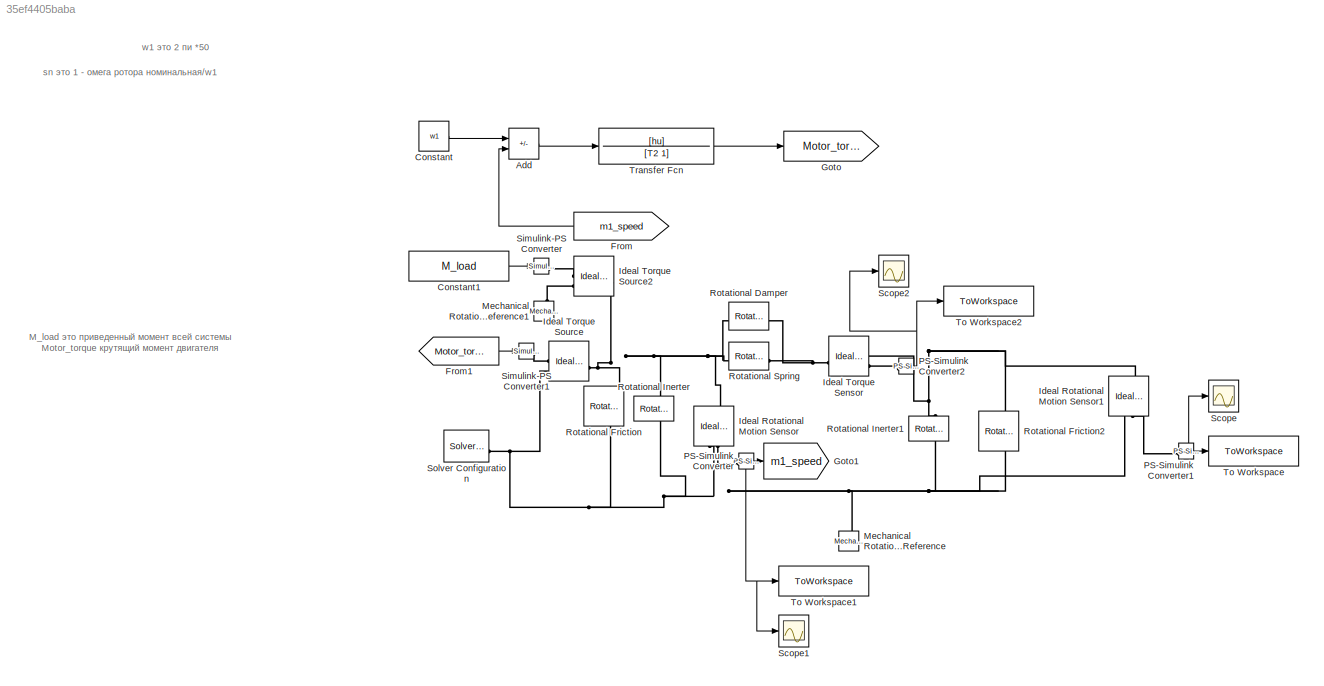
MODEL slx_35ef4405baba
KIND model
CONFIG AbsTol = auto
CONFIG EnableMultiTasking = off
CONFIG FixedStep = 0.01
CONFIG MaxStep = 0.001
CONFIG MinStep = auto
CONFIG RelTol = 1e-3
CONFIG SampleTimeConstraint = Unconstrained
CONFIG SolverName = ode23t
CONFIG StartTime = 0.0
CONFIG StopTime = 3
BLOCK [Sum] Add
  IconShape = rectangular
  Inputs = +-
BLOCK [Constant] Constant
  Value = w1
BLOCK [Constant] Constant1
  Value = M_load
BLOCK [From] From
  GotoTag = m1_speed
  NameLocation = top
BLOCK [From] From1
  GotoTag = Motor_torque
BLOCK [Goto] Goto
  GotoTag = Motor_torque
BLOCK [Goto] Goto1
  GotoTag = m1_speed
BLOCK [Reference] Ideal Rotational Motion Sensor  REF=fl_lib/Mechanical/Mechanical Sensors/Ideal Rotational
Motion Sensor
  NameLocation = left
  SourceBlock = fl_lib/Mechanical/Mechanical Sensors/Ideal Rotational\nMotion Sensor
  SourceType = Ideal Rotational\nMotion Sensor
BLOCK [Reference] Ideal Rotational Motion Sensor1  REF=fl_lib/Mechanical/Mechanical Sensors/Ideal Rotational
Motion Sensor
  NameLocation = left
  SourceBlock = fl_lib/Mechanical/Mechanical Sensors/Ideal Rotational\nMotion Sensor
  SourceType = Ideal Rotational\nMotion Sensor
BLOCK [Reference] Ideal Torque Sensor  REF=fl_lib/Mechanical/Mechanical Sensors/Ideal Torque Sensor
  SourceBlock = fl_lib/Mechanical/Mechanical Sensors/Ideal Torque Sensor
  SourceType = Ideal Torque Sensor
BLOCK [Reference] Ideal Torque Source  REF=fl_lib/Mechanical/Mechanical Sources/Ideal Torque Source
  SourceBlock = fl_lib/Mechanical/Mechanical Sources/Ideal Torque Source
  SourceType = Ideal Torque Source
BLOCK [Reference] Ideal Torque Source2  REF=fl_lib/Mechanical/Mechanical Sources/Ideal Torque Source
  SourceBlock = fl_lib/Mechanical/Mechanical Sources/Ideal Torque Source
  SourceType = Ideal Torque Source
BLOCK [Reference] Mechanical Rotational Reference  REF=fl_lib/Mechanical/Rotational Elements/Mechanical
Rotational Reference
  NameLocation = right
  SourceBlock = fl_lib/Mechanical/Rotational Elements/Mechanical\nRotational Reference
  SourceType = Mechanical\nRotational Reference
BLOCK [Reference] Mechanical Rotational Reference1  REF=fl_lib/Mechanical/Rotational Elements/Mechanical
Rotational Reference
  NameLocation = right
  SourceBlock = fl_lib/Mechanical/Rotational Elements/Mechanical\nRotational Reference
  SourceType = Mechanical\nRotational Reference
BLOCK [Reference] PS-Simulink Converter  REF=nesl_utility/PS-Simulink
Converter
  SourceBlock = nesl_utility/PS-Simulink\nConverter
  SourceType = PS-Simulink\nConverter
BLOCK [Reference] PS-Simulink Converter1  REF=nesl_utility/PS-Simulink
Converter
  SourceBlock = nesl_utility/PS-Simulink\nConverter
  SourceType = PS-Simulink\nConverter
BLOCK [Reference] PS-Simulink Converter2  REF=nesl_utility/PS-Simulink
Converter
  SourceBlock = nesl_utility/PS-Simulink\nConverter
  SourceType = PS-Simulink\nConverter
BLOCK [Reference] Rotational Damper  REF=fl_lib/Mechanical/Rotational Elements/Rotational Damper
  SourceBlock = fl_lib/Mechanical/Rotational Elements/Rotational Damper
  SourceType = Rotational Damper
BLOCK [Reference] Rotational Friction  REF=fl_lib/Mechanical/Rotational Elements/Rotational Friction
  NameLocation = left
  SourceBlock = fl_lib/Mechanical/Rotational Elements/Rotational Friction
  SourceType = Rotational Friction
BLOCK [Reference] Rotational Friction2  REF=fl_lib/Mechanical/Rotational Elements/Rotational Friction
  NameLocation = left
  SourceBlock = fl_lib/Mechanical/Rotational Elements/Rotational Friction
  SourceType = Rotational Friction
BLOCK [Reference] Rotational Inerter  REF=fl_lib/Mechanical/Rotational Elements/Rotational Inerter
  NameLocation = left
  SourceBlock = fl_lib/Mechanical/Rotational Elements/Rotational Inerter
  SourceType = Rotational Inerter
BLOCK [Reference] Rotational Inerter1  REF=fl_lib/Mechanical/Rotational Elements/Rotational Inerter
  NameLocation = left
  SourceBlock = fl_lib/Mechanical/Rotational Elements/Rotational Inerter
  SourceType = Rotational Inerter
BLOCK [Reference] Rotational Spring  REF=fl_lib/Mechanical/Rotational Elements/Rotational Spring
  SourceBlock = fl_lib/Mechanical/Rotational Elements/Rotational Spring
  SourceType = Rotational Spring
BLOCK [Scope] Scope
  Floating = off
  NumInputPorts = 1
  ScopeSpecificationString = Simulink.scopes.TimeScopeBlockCfg('CurrentConfiguration', extmgr.ConfigurationSet(extmgr.Configuration('Core','General UI',true),extmgr.Configuration('Core','Source UI',true),extmgr.Configuration('Sources','WiredSimulink',true),extmgr.Configuration('Visuals','Time Domain',true,'SerializedDisplays',{struct('MinYLimReal','-7.0495','MaxYLimReal','63.44547','YLabelReal','','MinYLimMag','0.00000','MaxY...<+1344ch>
BLOCK [Scope] Scope1
  Floating = off
  NumInputPorts = 1
  ScopeSpecificationString = Simulink.scopes.TimeScopeBlockCfg('CurrentConfiguration', extmgr.ConfigurationSet(extmgr.Configuration('Core','General UI',true),extmgr.Configuration('Core','Source UI',true),extmgr.Configuration('Sources','WiredSimulink',true,'DataLoggingVariableName','ScopeData1'),extmgr.Configuration('Visuals','Time Domain',true,'SerializedDisplays',{struct('MinYLimReal','-7.0495','MaxYLimReal','63.44547','YLab...<+1382ch>
BLOCK [Scope] Scope2
  Floating = off
  NumInputPorts = 1
  ScopeSpecificationString = Simulink.scopes.TimeScopeBlockCfg('CurrentConfiguration', extmgr.ConfigurationSet(extmgr.Configuration('Core','General UI',true),extmgr.Configuration('Core','Source UI',true),extmgr.Configuration('Sources','WiredSimulink',true,'DataLoggingVariableName','ScopeData2'),extmgr.Configuration('Visuals','Time Domain',true,'SerializedDisplays',{struct('MinYLimReal','-3.22879','MaxYLimReal','29.05908','YLa...<+1385ch>
BLOCK [Reference] Simulink-PS Converter  REF=nesl_utility/Simulink-PS
Converter
  SourceBlock = nesl_utility/Simulink-PS\nConverter
  SourceType = Simulink-PS\nConverter
BLOCK [Reference] Simulink-PS Converter1  REF=nesl_utility/Simulink-PS
Converter
  SourceBlock = nesl_utility/Simulink-PS\nConverter
  SourceType = Simulink-PS\nConverter
BLOCK [Reference] Solver Configuration  REF=nesl_utility/Solver
Configuration
  SourceBlock = nesl_utility/Solver\nConfiguration
  SourceType = Solver\nConfiguration
BLOCK [ToWorkspace] To Workspace
  FixptAsFi = on
  MaxDataPoints = inf
  SampleTime = -1
  SaveFormat = Timeseries
  VariableName = w2
BLOCK [ToWorkspace] To Workspace1
  FixptAsFi = on
  MaxDataPoints = inf
  SampleTime = -1
  SaveFormat = Timeseries
  VariableName = w1
BLOCK [ToWorkspace] To Workspace2
  FixptAsFi = on
  MaxDataPoints = inf
  SampleTime = -1
  SaveFormat = Timeseries
  VariableName = Ms12
BLOCK [TransferFcn] Transfer Fcn
  Denominator = [T2 1]
  Numerator = [hu]
ANNOTATION (root): M_load это приведенный момент всей системы Motor_torque крутящий момент двигателя
ANNOTATION (root): sn это 1 - омега ротора номинальная/w1
ANNOTATION (root): w1 это 2 пи *50
LINE Add:1 -> Transfer Fcn:1
LINE Constant1:1 -> Simulink-PS Converter:1
LINE Constant:1 -> Add:1
LINE From1:1 -> Simulink-PS Converter1:1
LINE From:1 -> Add:2
NET PS-Simulink Converter1:1 -> Scope:1, To Workspace:1
NET PS-Simulink Converter2:1 -> Scope2:1, To Workspace2:1
NET PS-Simulink Converter:1 -> Goto1:1, Scope1:1, To Workspace1:1
LINE Transfer Fcn:1 -> Goto:1
PNET net1: Ideal Rotational Motion Sensor1:LConn1 -- Ideal Torque Sensor:RConn1 -- Rotational Friction2:LConn1 -- Rotational Inerter1:LConn1
PNET net2: Ideal Rotational Motion Sensor1:RConn1 -- Ideal Rotational Motion Sensor:RConn1 -- Ideal Torque Source:RConn2 -- Mechanical Rotational Reference:LConn1 -- Rotational Friction2:RConn1 -- Rotational Friction:RConn1 -- Rotational Inerter1:RConn1 -- Rotational Inerter:RConn1 -- Solver Configuration:RConn1
PLINE Ideal Rotational Motion Sensor1:RConn2 -- PS-Simulink Converter1:LConn1
PNET net3: Ideal Rotational Motion Sensor:LConn1 -- Ideal Torque Source2:LConn1 -- Ideal Torque Source:LConn1 -- Rotational Damper:LConn1 -- Rotational Friction:LConn1 -- Rotational Inerter:LConn1 -- Rotational Spring:LConn1
PLINE Ideal Rotational Motion Sensor:RConn2 -- PS-Simulink Converter:LConn1
PNET net4: Ideal Torque Sensor:LConn1 -- Rotational Damper:RConn1 -- Rotational Spring:RConn1
PLINE Ideal Torque Sensor:RConn2 -- PS-Simulink Converter2:LConn1
PLINE Ideal Torque Source2:RConn1 -- Simulink-PS Converter:RConn1
PLINE Ideal Torque Source2:RConn2 -- Mechanical Rotational Reference1:LConn1
PLINE Ideal Torque Source:RConn1 -- Simulink-PS Converter1:RConn1
note: NET lines group one-source signal fan-out (src -> all destinations, sorted); 1:1 wires keep LINE; PNET lines group multi-terminal physical nets as a canonical sorted terminal list (undirected conserving connections); 2-terminal nets keep the pairwise PLINE form
